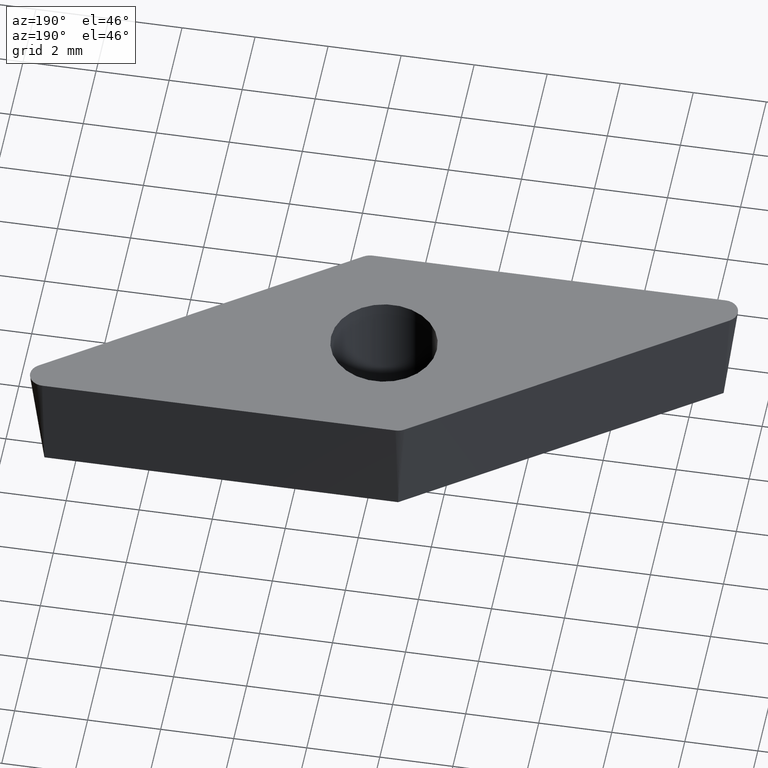
[diagram: clean part render]
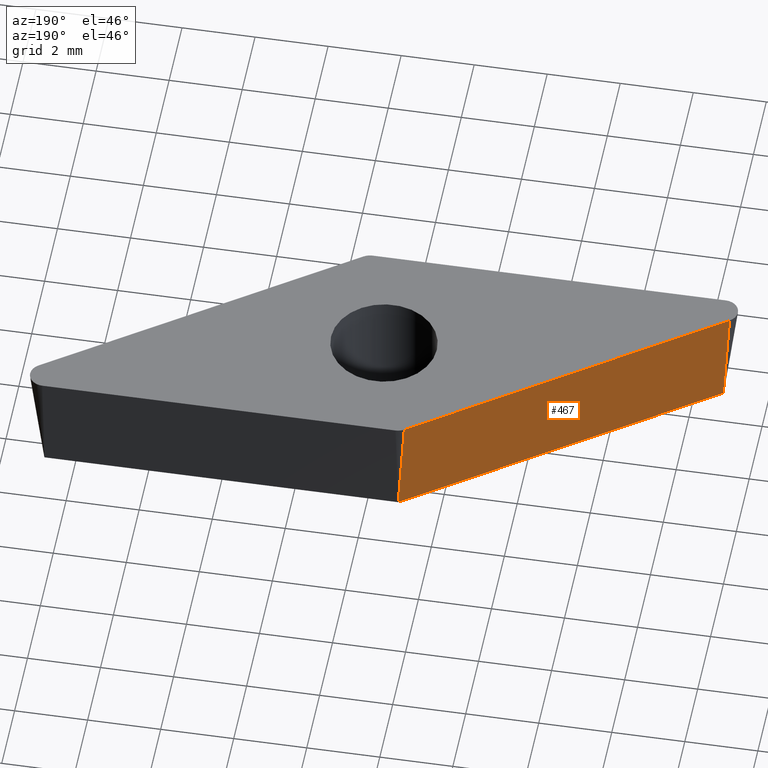
[diagram: same view with one face highlighted and labeled with its STEP entity id]
A machine part, auxiliary view. The second image highlights one B-rep face of the part: STEP entity #467.
In plain terms, the highlighted face is a freeform B-spline surface patch.
Its self-contained STEP definition (entity closure, byte-faithful):
#10 = DIRECTION ( 'NONE',  ( 0.06990138369076597000, -0.09982952178648431300, -0.9925461516413219800 ) ) ;
#25 = VERTEX_POINT ( 'NONE', #323 ) ;
#33 = CARTESIAN_POINT ( 'NONE',  ( -6.119785459984298000, -0.9811495013339721600, -3.815999999999999800 ) ) ;
#35 = CARTESIAN_POINT ( 'NONE',  ( -3.477711647505219000, 0.8688504986572684900, -3.815999999999999800 ) ) ;
#61 = VERTEX_POINT ( 'NONE', #369 ) ;
#64 = CARTESIAN_POINT ( 'NONE',  ( -6.388532338628208700, -0.5973391822804898800, 0.0000000000000000000 ) ) ;
#65 = EDGE_CURVE ( 'NONE', #199, #25, #244, .T. ) ;
#72 = CARTESIAN_POINT ( 'NONE',  ( -1.104384713679592800, 3.102660817715595400, 0.0000000000000000000 ) ) ;
#78 = ORIENTED_EDGE ( 'NONE', *, *, #312, .T. ) ;
#81 = CARTESIAN_POINT ( 'NONE',  ( -3.746458526149465000, 1.252660817711216000, 0.0000000000000000000 ) ) ;
#85 = CARTESIAN_POINT ( 'NONE',  ( -3.522502793945926600, 0.9328188851662595500, -3.180000000000000600 ) ) ;
#93 = CARTESIAN_POINT ( 'NONE',  ( -9.030606151098412600, -2.447339182284403100, 0.0000000000000000000 ) ) ;
#163 = VECTOR ( 'NONE', #300, 1000.000000000000100 ) ;
#165 = ORIENTED_EDGE ( 'NONE', *, *, #65, .T. ) ;
#172 = CARTESIAN_POINT ( 'NONE',  ( -0.8804289814760550800, 2.782818885170638800, -3.180000000000000200 ) ) ;
#173 = EDGE_LOOP ( 'NONE', ( #449, #391, #78, #165 ) ) ;
#199 = VERTEX_POINT ( 'NONE', #404 ) ;
#201 = VERTEX_POINT ( 'NONE', #172 ) ;
#204 = EDGE_CURVE ( 'NONE', #61, #25, #213, .T. ) ;
#205 = DIRECTION ( 'NONE',  ( -0.06990138369076597000, 0.09982952178648431300, 0.9925461516413219800 ) ) ;
#213 = LINE ( 'NONE', #306, #163 ) ;
#215 = CARTESIAN_POINT ( 'NONE',  ( -8.761859272454168800, -2.831149501338350700, -3.815999999999999800 ) ) ;
#226 = CARTESIAN_POINT ( 'NONE',  ( -9.030606151098412600, -2.447339182284403100, 0.0000000000000000000 ) ) ;
#228 = CARTESIAN_POINT ( 'NONE',  ( -0.8356378350353475000, 2.718850498661647700, -3.815999999999999800 ) ) ;
#244 = LINE ( 'NONE', #93, #327 ) ;
#248 = CARTESIAN_POINT ( 'NONE',  ( -0.8804289814760550800, 2.782818885170638800, -3.180000000000000200 ) ) ;
#268 = CARTESIAN_POINT ( 'NONE',  ( -1.104384713679592800, 3.102660817715595400, 0.0000000000000000000 ) ) ;
#300 = DIRECTION ( 'NONE',  ( -0.8191520442889948000, -0.5735764363510417200, -0.0000000000000000000 ) ) ;
#304 = CARTESIAN_POINT ( 'NONE',  ( -6.164576606424949600, -0.9171811148250583700, -3.180000000000000600 ) ) ;
#306 = CARTESIAN_POINT ( 'NONE',  ( -10.06981349750329400, -3.175000000000001200, 0.0000000000000000000 ) ) ;
#309 = CARTESIAN_POINT ( 'NONE',  ( -8.806650418894875500, -2.767181114829359700, -3.180000000000000200 ) ) ;
#312 = EDGE_CURVE ( 'NONE', #201, #199, #436, .T. ) ;
#323 = CARTESIAN_POINT ( 'NONE',  ( -9.030606151098412600, -2.447339182284403100, 0.0000000000000000000 ) ) ;
#327 = VECTOR ( 'NONE', #205, 1000.000000000000000 ) ;
#362 = FACE_OUTER_BOUND ( 'NONE', #173, .T. ) ;
#369 = CARTESIAN_POINT ( 'NONE',  ( -1.104384713679589200, 3.102660817715597200, 0.0000000000000000000 ) ) ;
#391 = ORIENTED_EDGE ( 'NONE', *, *, #412, .T. ) ;
#396 = B_SPLINE_SURFACE_WITH_KNOTS ( 'NONE', 1, 3, ( 
 ( #72, #81, #64, #226 ),
 ( #228, #35, #33, #215 ) ),
 .UNSPECIFIED., .F., .F., .F.,
 ( 2, 2 ),
 ( 4, 4 ),
 ( 0.0000000000000000000, 1.000000000000000000 ),
 ( -0.01094476763664246200, -0.001268637920945297400 ),
 .UNSPECIFIED. ) ;
#404 = CARTESIAN_POINT ( 'NONE',  ( -8.806650418894875500, -2.767181114829359700, -3.180000000000000200 ) ) ;
#412 = EDGE_CURVE ( 'NONE', #61, #201, #419, .T. ) ;
#418 = VECTOR ( 'NONE', #10, 1000.000000000000000 ) ;
#419 = LINE ( 'NONE', #268, #418 ) ;
#436 = B_SPLINE_CURVE_WITH_KNOTS ( 'NONE', 3,
 ( #248, #85, #304, #309 ),
 .UNSPECIFIED., .F., .F.,
 ( 4, 4 ),
 ( 0.0000000000000000000, 0.009676129715697165100 ),
 .UNSPECIFIED. ) ;
#449 = ORIENTED_EDGE ( 'NONE', *, *, #204, .F. ) ;
#467 = ADVANCED_FACE ( 'NONE', ( #362 ), #396, .T. ) ;